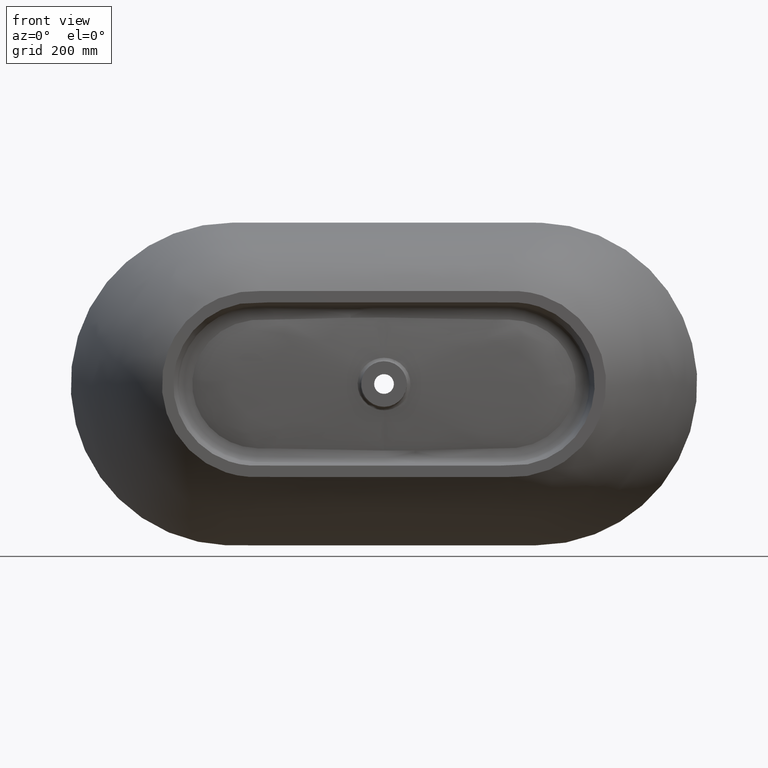
[diagram: clean part render]
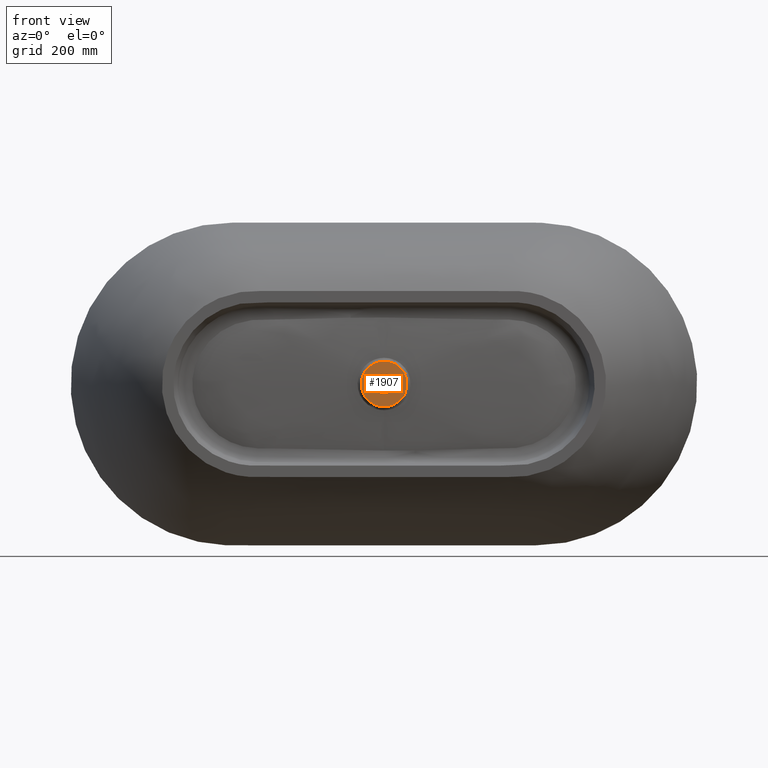
[diagram: same view with one face highlighted and labeled with its STEP entity id]
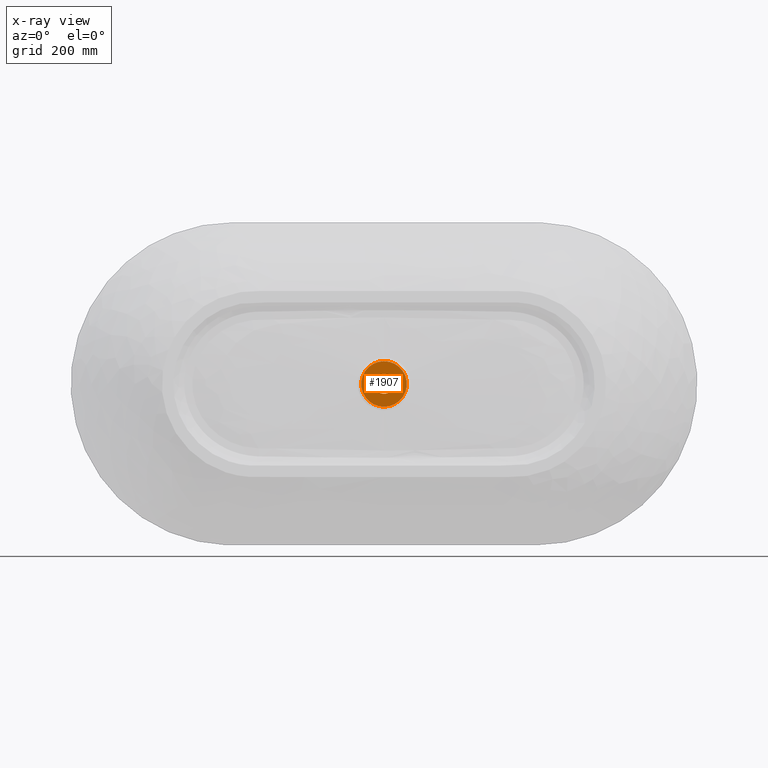
[diagram: x-ray of the same camera — body ghosted, the highlighted face saturated]
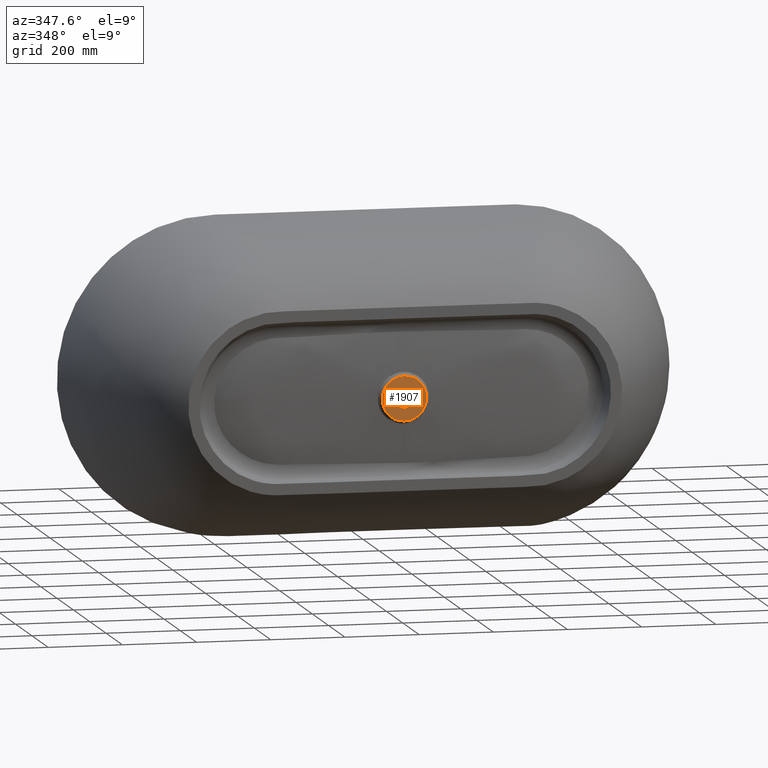
[diagram: same view with one face highlighted and labeled with its STEP entity id]
A machine part, front view. The second image highlights one B-rep face of the part: STEP entity #1907.
The next image is the same camera in x-ray: the body ghosted, the highlighted face saturated — about 0% of this face is hidden behind the body in this view.
A second angle (auxiliary view) of the same face is appended — the face is thin or edge-on in the first view.
In plain terms, the highlighted planar face has unit normal (0, 1, 0).
Its self-contained STEP definition (entity closure, byte-faithful):
#163 = AXIS2_PLACEMENT_3D ( 'NONE', #4905, #13715, #6219 ) ;
#479 = AXIS2_PLACEMENT_3D ( 'NONE', #11841, #11091, #15137 ) ;
#707 = CIRCLE ( 'NONE', #163, 60.00000000000000000 ) ;
#841 = CARTESIAN_POINT ( 'NONE',  ( 0.0000000000000000000, -510.0000000000000000, 0.0000000000000000000 ) ) ;
#868 = ORIENTED_EDGE ( 'NONE', *, *, #1533, .T. ) ;
#887 = CARTESIAN_POINT ( 'NONE',  ( 26.00000000000000400, -510.0000000000000000, 0.0000000000000000000 ) ) ;
#1533 = EDGE_CURVE ( 'NONE', #5837, #13452, #7929, .T. ) ;
#1751 = EDGE_CURVE ( 'NONE', #7278, #11796, #4791, .T. ) ;
#1907 = ADVANCED_FACE ( 'NONE', ( #13497, #7033 ), #5955, .F. ) ;
#2903 = EDGE_LOOP ( 'NONE', ( #11473, #6837 ) ) ;
#3979 = DIRECTION ( 'NONE',  ( 0.0000000000000000000, -0.0000000000000000000, 1.000000000000000000 ) ) ;
#4560 = DIRECTION ( 'NONE',  ( 0.0000000000000000000, 1.000000000000000000, 0.0000000000000000000 ) ) ;
#4791 = CIRCLE ( 'NONE', #5548, 60.00000000000000000 ) ;
#4905 = CARTESIAN_POINT ( 'NONE',  ( 0.0000000000000000000, -510.0000000000000000, 0.0000000000000000000 ) ) ;
#5548 = AXIS2_PLACEMENT_3D ( 'NONE', #14082, #10068, #15897 ) ;
#5837 = VERTEX_POINT ( 'NONE', #887 ) ;
#5955 = PLANE ( 'NONE',  #11399 ) ;
#6219 = DIRECTION ( 'NONE',  ( 0.0000000000000000000, 0.0000000000000000000, 1.000000000000000000 ) ) ;
#6409 = CARTESIAN_POINT ( 'NONE',  ( 6.104513663754760600E-015, -510.0000000000000000, 0.0000000000000000000 ) ) ;
#6837 = ORIENTED_EDGE ( 'NONE', *, *, #1751, .F. ) ;
#7033 = FACE_OUTER_BOUND ( 'NONE', #2903, .T. ) ;
#7278 = VERTEX_POINT ( 'NONE', #7666 ) ;
#7437 = EDGE_LOOP ( 'NONE', ( #868, #9679 ) ) ;
#7666 = CARTESIAN_POINT ( 'NONE',  ( 7.347880794884116800E-015, -510.0000000000000000, 60.00000000000000000 ) ) ;
#7702 = DIRECTION ( 'NONE',  ( 0.0000000000000000000, 0.0000000000000000000, 1.000000000000000000 ) ) ;
#7929 = CIRCLE ( 'NONE', #479, 25.99999999999999600 ) ;
#8675 = CARTESIAN_POINT ( 'NONE',  ( -25.99999999999998900, -510.0000000000000000, 3.184081677783117800E-015 ) ) ;
#8990 = CIRCLE ( 'NONE', #15175, 25.99999999999999600 ) ;
#9679 = ORIENTED_EDGE ( 'NONE', *, *, #15964, .T. ) ;
#10068 = DIRECTION ( 'NONE',  ( 0.0000000000000000000, 1.000000000000000000, 0.0000000000000000000 ) ) ;
#11091 = DIRECTION ( 'NONE',  ( 0.0000000000000000000, 1.000000000000000000, 0.0000000000000000000 ) ) ;
#11399 = AXIS2_PLACEMENT_3D ( 'NONE', #841, #4560, #3979 ) ;
#11473 = ORIENTED_EDGE ( 'NONE', *, *, #13421, .F. ) ;
#11796 = VERTEX_POINT ( 'NONE', #15401 ) ;
#11841 = CARTESIAN_POINT ( 'NONE',  ( 6.104513663754760600E-015, -510.0000000000000000, 0.0000000000000000000 ) ) ;
#13421 = EDGE_CURVE ( 'NONE', #11796, #7278, #707, .T. ) ;
#13452 = VERTEX_POINT ( 'NONE', #8675 ) ;
#13497 = FACE_BOUND ( 'NONE', #7437, .T. ) ;
#13715 = DIRECTION ( 'NONE',  ( 0.0000000000000000000, 1.000000000000000000, 0.0000000000000000000 ) ) ;
#14082 = CARTESIAN_POINT ( 'NONE',  ( 0.0000000000000000000, -510.0000000000000000, 0.0000000000000000000 ) ) ;
#15137 = DIRECTION ( 'NONE',  ( 0.0000000000000000000, 0.0000000000000000000, 1.000000000000000000 ) ) ;
#15172 = DIRECTION ( 'NONE',  ( 0.0000000000000000000, 1.000000000000000000, 0.0000000000000000000 ) ) ;
#15175 = AXIS2_PLACEMENT_3D ( 'NONE', #6409, #15172, #7702 ) ;
#15401 = CARTESIAN_POINT ( 'NONE',  ( 0.0000000000000000000, -510.0000000000000000, -60.00000000000000000 ) ) ;
#15897 = DIRECTION ( 'NONE',  ( 0.0000000000000000000, 0.0000000000000000000, 1.000000000000000000 ) ) ;
#15964 = EDGE_CURVE ( 'NONE', #13452, #5837, #8990, .T. ) ;